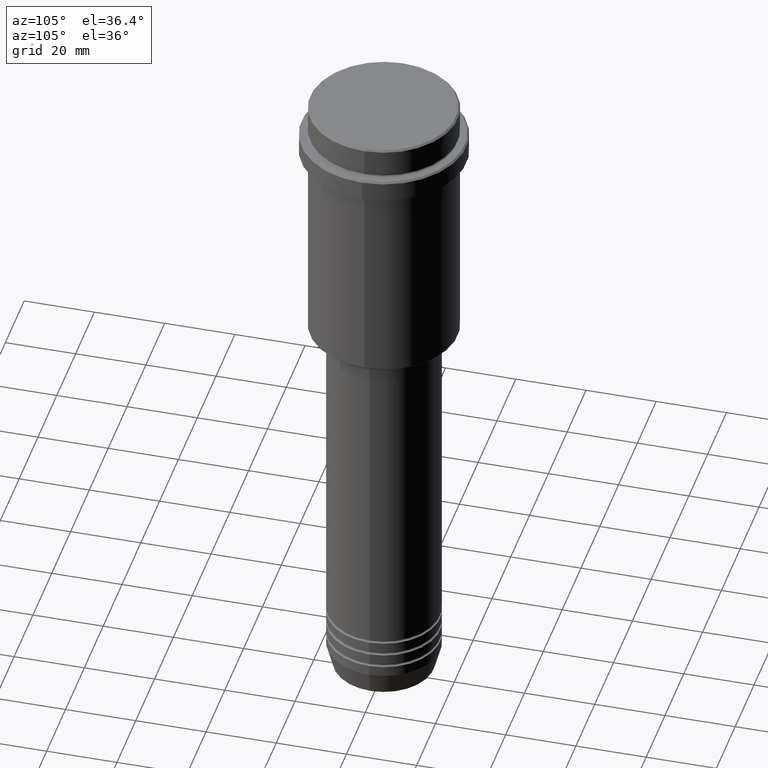
[diagram: clean part render]
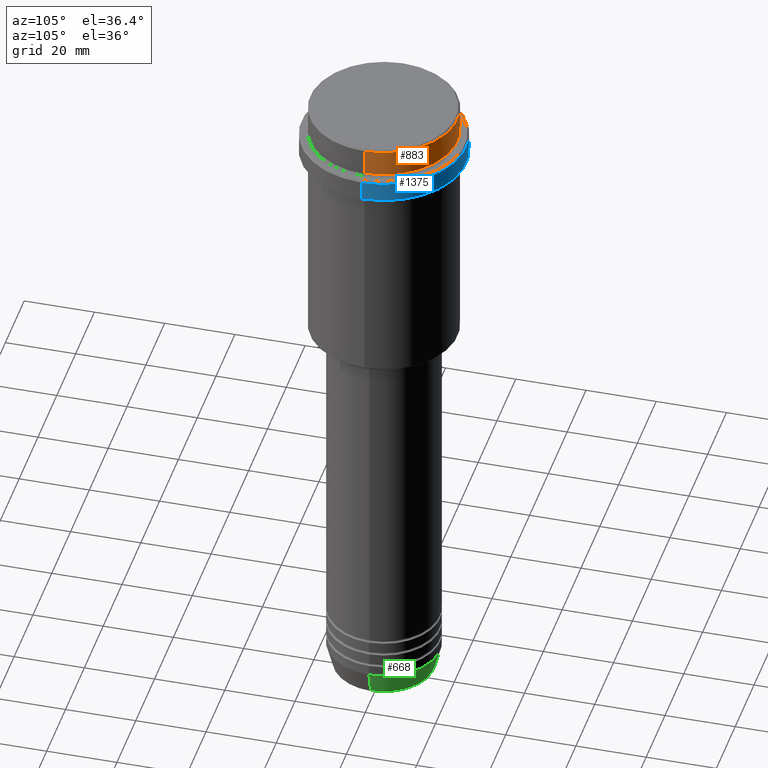
[diagram: same view with three faces highlighted in distinct colors, each labeled with its STEP entity id]
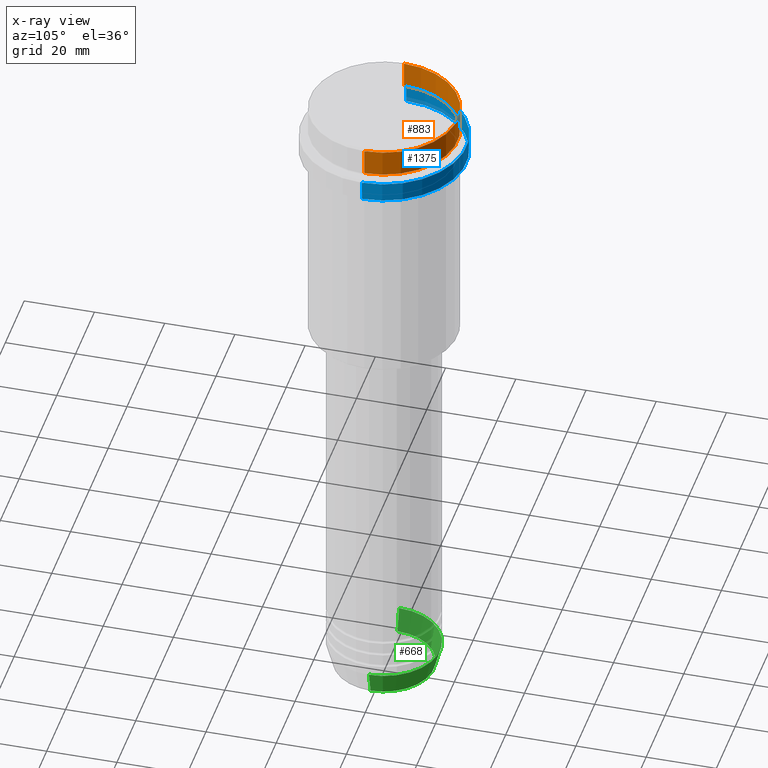
[diagram: x-ray of the same camera — body ghosted, the three highlighted faces saturated]
A machine part, auxiliary view with three faces highlighted in distinct colors.
The next image is the same camera in x-ray (body ghosted, the three faces saturated) — at least one of them is partly hidden behind the body in this view.
Their STEP definitions:

[orange] entity #883 — the highlighted cylindrical surface (partial cylindrical patch) has radius 21 mm, axis along (-0, -0, 1).
#42 = ORIENTED_EDGE ( 'NONE', *, *, #398, .T. ) ;
#112 = VERTEX_POINT ( 'NONE', #621 ) ;
#131 = DIRECTION ( 'NONE',  ( 1.000000000000000000, 0.000000000000000000, 0.000000000000000000 ) ) ;
#134 = CIRCLE ( 'NONE', #1386, 21.00000000000000000 ) ;
#135 = VERTEX_POINT ( 'NONE', #609 ) ;
#158 = FACE_OUTER_BOUND ( 'NONE', #451, .T. ) ;
#186 = CIRCLE ( 'NONE', #369, 21.00000000000000000 ) ;
#188 = DIRECTION ( 'NONE',  ( -0.000000000000000000, -0.000000000000000000, 1.000000000000000000 ) ) ;
#296 = VECTOR ( 'NONE', #188, 1000.000000000000000 ) ;
#369 = AXIS2_PLACEMENT_3D ( 'NONE', #594, #1103, #131 ) ;
#388 = LINE ( 'NONE', #953, #296 ) ;
#398 = EDGE_CURVE ( 'NONE', #135, #1324, #134, .T. ) ;
#402 = ORIENTED_EDGE ( 'NONE', *, *, #510, .F. ) ;
#451 = EDGE_LOOP ( 'NONE', ( #42, #977, #564, #402 ) ) ;
#458 = CARTESIAN_POINT ( 'NONE',  ( 0.000000000000000000, 0.000000000000000000, -7.999999999999998224 ) ) ;
#493 = DIRECTION ( 'NONE',  ( 1.000000000000000000, 0.000000000000000000, 0.000000000000000000 ) ) ;
#510 = EDGE_CURVE ( 'NONE', #135, #1044, #1350, .T. ) ;
#530 = CARTESIAN_POINT ( 'NONE',  ( 21.00000000000000000, 0.000000000000000000, -0.5000000000000108802 ) ) ;
#564 = ORIENTED_EDGE ( 'NONE', *, *, #1267, .T. ) ;
#594 = CARTESIAN_POINT ( 'NONE',  ( 0.000000000000000000, 0.000000000000000000, -0.5000000000000108802 ) ) ;
#596 = VECTOR ( 'NONE', #836, 1000.000000000000000 ) ;
#597 = CARTESIAN_POINT ( 'NONE',  ( 0.000000000000000000, 0.000000000000000000, 0.000000000000000000 ) ) ;
#609 = CARTESIAN_POINT ( 'NONE',  ( 21.00000000000000000, 0.000000000000000000, -7.999999999999998224 ) ) ;
#621 = CARTESIAN_POINT ( 'NONE',  ( -21.00000000000000000, 2.571758278209441661E-15, -0.5000000000000108802 ) ) ;
#702 = CYLINDRICAL_SURFACE ( 'NONE', #1144, 21.00000000000000000 ) ;
#830 = CARTESIAN_POINT ( 'NONE',  ( 21.00000000000000000, 0.000000000000000000, 0.000000000000000000 ) ) ;
#836 = DIRECTION ( 'NONE',  ( -0.000000000000000000, -0.000000000000000000, 1.000000000000000000 ) ) ;
#883 = ADVANCED_FACE ( 'NONE', ( #158 ), #702, .T. ) ;
#953 = CARTESIAN_POINT ( 'NONE',  ( -21.00000000000000000, 2.571758278209441661E-15, 0.000000000000000000 ) ) ;
#977 = ORIENTED_EDGE ( 'NONE', *, *, #1060, .T. ) ;
#1031 = CARTESIAN_POINT ( 'NONE',  ( -21.00000000000000000, 2.571758278209441661E-15, -7.999999999999998224 ) ) ;
#1044 = VERTEX_POINT ( 'NONE', #530 ) ;
#1060 = EDGE_CURVE ( 'NONE', #1324, #112, #388, .T. ) ;
#1103 = DIRECTION ( 'NONE',  ( 0.000000000000000000, 0.000000000000000000, -1.000000000000000000 ) ) ;
#1144 = AXIS2_PLACEMENT_3D ( 'NONE', #597, #1147, #493 ) ;
#1147 = DIRECTION ( 'NONE',  ( -0.000000000000000000, -0.000000000000000000, 1.000000000000000000 ) ) ;
#1201 = DIRECTION ( 'NONE',  ( -0.000000000000000000, -0.000000000000000000, 1.000000000000000000 ) ) ;
#1267 = EDGE_CURVE ( 'NONE', #112, #1044, #186, .T. ) ;
#1324 = VERTEX_POINT ( 'NONE', #1031 ) ;
#1337 = DIRECTION ( 'NONE',  ( 1.000000000000000000, 0.000000000000000000, 0.000000000000000000 ) ) ;
#1350 = LINE ( 'NONE', #830, #596 ) ;
#1386 = AXIS2_PLACEMENT_3D ( 'NONE', #458, #1201, #1337 ) ;

[blue] entity #1375 — the highlighted cylindrical surface (partial cylindrical patch) has radius 23.5 mm, axis along (-0, -0, 1).
#32 = CARTESIAN_POINT ( 'NONE',  ( 23.50000000000000355, 0.000000000000000000, -15.00000000000000000 ) ) ;
#45 = DIRECTION ( 'NONE',  ( -0.000000000000000000, -0.000000000000000000, 1.000000000000000000 ) ) ;
#87 = CARTESIAN_POINT ( 'NONE',  ( -23.50000000000000000, 2.877919977996280320E-15, 0.000000000000000000 ) ) ;
#89 = VERTEX_POINT ( 'NONE', #603 ) ;
#136 = CARTESIAN_POINT ( 'NONE',  ( 0.000000000000000000, 0.000000000000000000, -9.500000000000000000 ) ) ;
#138 = CIRCLE ( 'NONE', #617, 23.50000000000000000 ) ;
#145 = DIRECTION ( 'NONE',  ( -0.000000000000000000, -0.000000000000000000, 1.000000000000000000 ) ) ;
#150 = DIRECTION ( 'NONE',  ( 1.000000000000000000, 0.000000000000000000, 0.000000000000000000 ) ) ;
#210 = ORIENTED_EDGE ( 'NONE', *, *, #816, .T. ) ;
#232 = VERTEX_POINT ( 'NONE', #1078 ) ;
#257 = FACE_OUTER_BOUND ( 'NONE', #1085, .T. ) ;
#392 = VECTOR ( 'NONE', #145, 1000.000000000000000 ) ;
#396 = CARTESIAN_POINT ( 'NONE',  ( -23.50000000000000000, 2.877919977996280320E-15, -9.500000000000000000 ) ) ;
#434 = VERTEX_POINT ( 'NONE', #32 ) ;
#444 = LINE ( 'NONE', #87, #758 ) ;
#575 = DIRECTION ( 'NONE',  ( -0.000000000000000000, -0.000000000000000000, 1.000000000000000000 ) ) ;
#585 = DIRECTION ( 'NONE',  ( 0.000000000000000000, 0.000000000000000000, -1.000000000000000000 ) ) ;
#603 = CARTESIAN_POINT ( 'NONE',  ( -23.50000000000000711, 2.877919977996281109E-15, -15.00000000000000000 ) ) ;
#617 = AXIS2_PLACEMENT_3D ( 'NONE', #136, #585, #901 ) ;
#671 = ORIENTED_EDGE ( 'NONE', *, *, #895, .T. ) ;
#679 = CARTESIAN_POINT ( 'NONE',  ( 0.000000000000000000, 0.000000000000000000, 0.000000000000000000 ) ) ;
#688 = CIRCLE ( 'NONE', #1342, 23.50000000000000355 ) ;
#696 = CARTESIAN_POINT ( 'NONE',  ( 0.000000000000000000, 0.000000000000000000, -15.00000000000000000 ) ) ;
#744 = ORIENTED_EDGE ( 'NONE', *, *, #858, .F. ) ;
#749 = DIRECTION ( 'NONE',  ( -0.000000000000000000, -0.000000000000000000, 1.000000000000000000 ) ) ;
#758 = VECTOR ( 'NONE', #749, 1000.000000000000000 ) ;
#811 = CYLINDRICAL_SURFACE ( 'NONE', #870, 23.50000000000000000 ) ;
#816 = EDGE_CURVE ( 'NONE', #1034, #232, #138, .T. ) ;
#858 = EDGE_CURVE ( 'NONE', #434, #232, #1122, .T. ) ;
#870 = AXIS2_PLACEMENT_3D ( 'NONE', #679, #575, #150 ) ;
#895 = EDGE_CURVE ( 'NONE', #434, #89, #688, .T. ) ;
#901 = DIRECTION ( 'NONE',  ( 1.000000000000000000, 0.000000000000000000, 0.000000000000000000 ) ) ;
#1034 = VERTEX_POINT ( 'NONE', #396 ) ;
#1078 = CARTESIAN_POINT ( 'NONE',  ( 23.50000000000000000, 0.000000000000000000, -9.500000000000000000 ) ) ;
#1085 = EDGE_LOOP ( 'NONE', ( #671, #1373, #210, #744 ) ) ;
#1111 = DIRECTION ( 'NONE',  ( 1.000000000000000000, 0.000000000000000000, 0.000000000000000000 ) ) ;
#1122 = LINE ( 'NONE', #1135, #392 ) ;
#1135 = CARTESIAN_POINT ( 'NONE',  ( 23.50000000000000000, 0.000000000000000000, 0.000000000000000000 ) ) ;
#1175 = EDGE_CURVE ( 'NONE', #89, #1034, #444, .T. ) ;
#1342 = AXIS2_PLACEMENT_3D ( 'NONE', #696, #45, #1111 ) ;
#1373 = ORIENTED_EDGE ( 'NONE', *, *, #1175, .T. ) ;
#1375 = ADVANCED_FACE ( 'NONE', ( #257 ), #811, .T. ) ;

[green] entity #668 — the highlighted conical surface has half-angle 15 deg.
#39 = CARTESIAN_POINT ( 'NONE',  ( 0.000000000000000000, 0.000000000000000000, -183.0000000000000000 ) ) ;
#111 = ORIENTED_EDGE ( 'NONE', *, *, #989, .F. ) ;
#137 = AXIS2_PLACEMENT_3D ( 'NONE', #1380, #259, #699 ) ;
#155 = FACE_OUTER_BOUND ( 'NONE', #448, .T. ) ;
#162 = AXIS2_PLACEMENT_3D ( 'NONE', #629, #1178, #824 ) ;
#177 = ORIENTED_EDGE ( 'NONE', *, *, #995, .F. ) ;
#226 = AXIS2_PLACEMENT_3D ( 'NONE', #39, #630, #404 ) ;
#258 = EDGE_CURVE ( 'NONE', #1343, #1101, #414, .T. ) ;
#259 = DIRECTION ( 'NONE',  ( -0.000000000000000000, -0.000000000000000000, 1.000000000000000000 ) ) ;
#346 = VERTEX_POINT ( 'NONE', #648 ) ;
#401 = LINE ( 'NONE', #507, #963 ) ;
#404 = DIRECTION ( 'NONE',  ( 1.000000000000000000, 0.000000000000000000, 0.000000000000000000 ) ) ;
#410 = VECTOR ( 'NONE', #1396, 1000.000000000000000 ) ;
#414 = LINE ( 'NONE', #1089, #410 ) ;
#448 = EDGE_LOOP ( 'NONE', ( #1346, #827, #177, #111 ) ) ;
#507 = CARTESIAN_POINT ( 'NONE',  ( 16.00000000000000000, 0.000000000000000000, -183.0000000000000000 ) ) ;
#629 = CARTESIAN_POINT ( 'NONE',  ( 0.000000000000000000, 0.000000000000000000, -183.0000000000000000 ) ) ;
#630 = DIRECTION ( 'NONE',  ( -0.000000000000000000, -0.000000000000000000, 1.000000000000000000 ) ) ;
#644 = VERTEX_POINT ( 'NONE', #1157 ) ;
#648 = CARTESIAN_POINT ( 'NONE',  ( 14.22365507213718772, 0.000000000000000000, -189.6294095225512422 ) ) ;
#662 = CIRCLE ( 'NONE', #162, 16.00000000000000000 ) ;
#666 = EDGE_CURVE ( 'NONE', #346, #1343, #1318, .T. ) ;
#668 = ADVANCED_FACE ( 'NONE', ( #155 ), #984, .T. ) ;
#699 = DIRECTION ( 'NONE',  ( 1.000000000000000000, 0.000000000000000000, 0.000000000000000000 ) ) ;
#745 = DIRECTION ( 'NONE',  ( 0.2588190451025213501, 0.000000000000000000, 0.9659258262890680902 ) ) ;
#787 = CARTESIAN_POINT ( 'NONE',  ( -14.22365507213718772, 1.850665122131323337E-15, -189.6294095225512422 ) ) ;
#824 = DIRECTION ( 'NONE',  ( 1.000000000000000000, 0.000000000000000000, 0.000000000000000000 ) ) ;
#827 = ORIENTED_EDGE ( 'NONE', *, *, #258, .T. ) ;
#963 = VECTOR ( 'NONE', #745, 1000.000000000000000 ) ;
#984 = CONICAL_SURFACE ( 'NONE', #226, 16.00000000000000000, 0.2617993877991500740 ) ;
#989 = EDGE_CURVE ( 'NONE', #346, #644, #401, .T. ) ;
#995 = EDGE_CURVE ( 'NONE', #644, #1101, #662, .T. ) ;
#1089 = CARTESIAN_POINT ( 'NONE',  ( -16.00000000000000000, 1.959434878635765131E-15, -183.0000000000000000 ) ) ;
#1101 = VERTEX_POINT ( 'NONE', #1289 ) ;
#1157 = CARTESIAN_POINT ( 'NONE',  ( 16.00000000000000000, 0.000000000000000000, -183.0000000000000000 ) ) ;
#1178 = DIRECTION ( 'NONE',  ( -0.000000000000000000, -0.000000000000000000, 1.000000000000000000 ) ) ;
#1289 = CARTESIAN_POINT ( 'NONE',  ( -16.00000000000000000, 1.959434878635765131E-15, -183.0000000000000000 ) ) ;
#1318 = CIRCLE ( 'NONE', #137, 14.22365507213718772 ) ;
#1343 = VERTEX_POINT ( 'NONE', #787 ) ;
#1346 = ORIENTED_EDGE ( 'NONE', *, *, #666, .T. ) ;
#1380 = CARTESIAN_POINT ( 'NONE',  ( 0.000000000000000000, 0.000000000000000000, -189.6294095225512422 ) ) ;
#1396 = DIRECTION ( 'NONE',  ( -0.2588190451025213501, 3.169619151431772337E-17, 0.9659258262890680902 ) ) ;